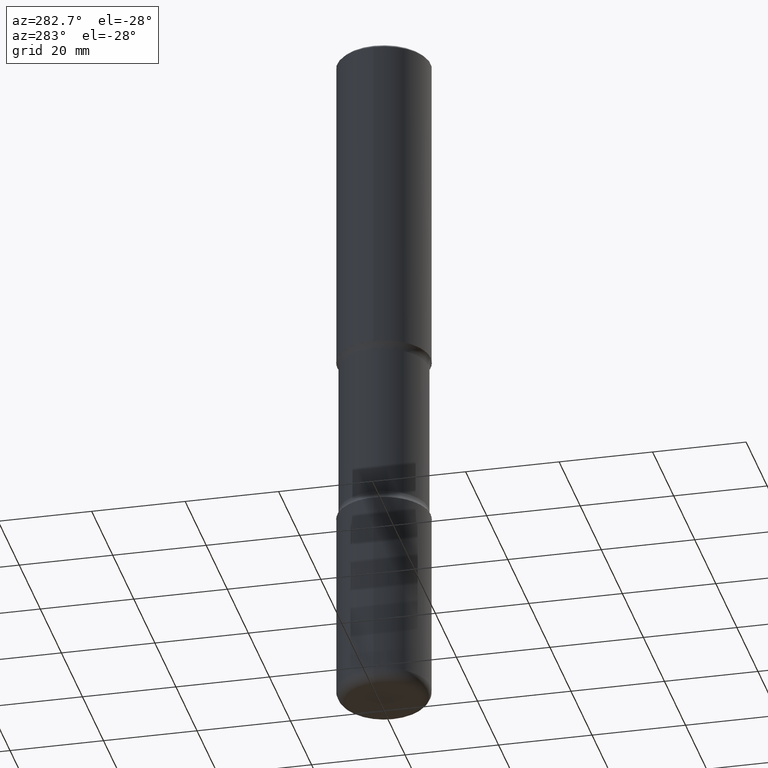
[diagram: clean part render]
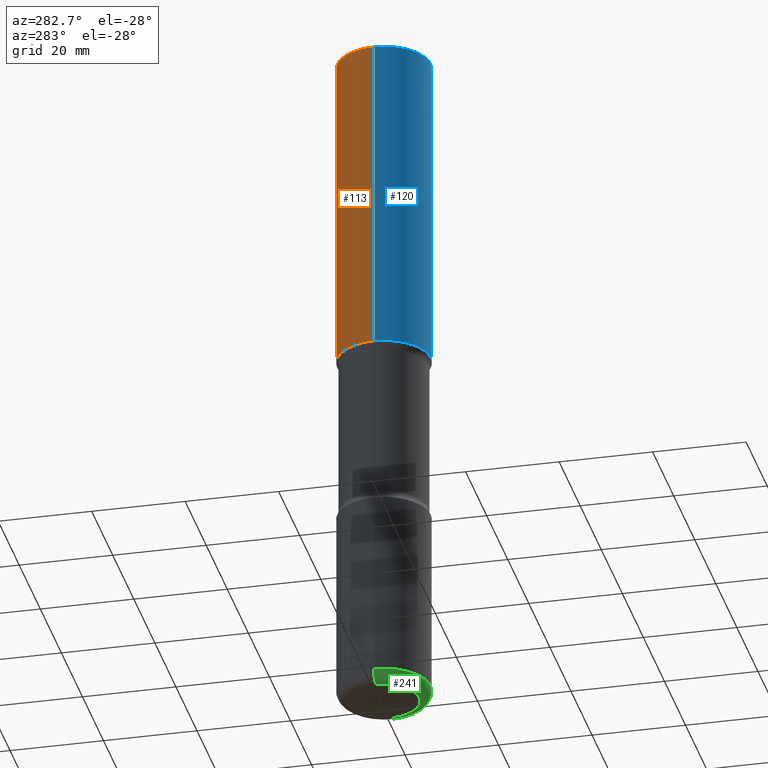
[diagram: same view with three faces highlighted in distinct colors, each labeled with its STEP entity id]
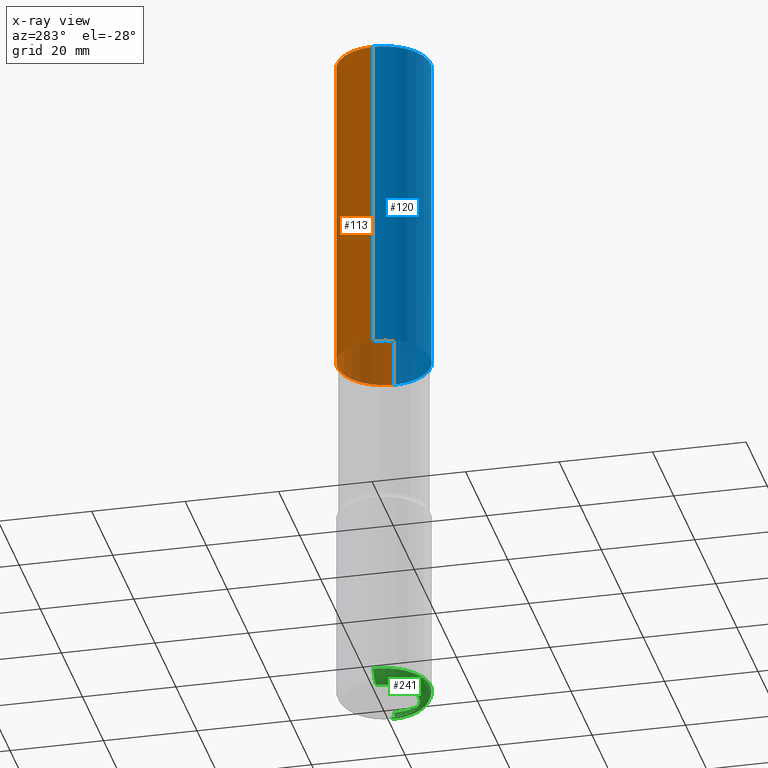
[diagram: x-ray of the same camera — body ghosted, the three highlighted faces saturated]
A machine part, auxiliary view with three faces highlighted in distinct colors.
The next image is the same camera in x-ray (body ghosted, the three faces saturated) — at least one of them is partly hidden behind the body in this view.
Their STEP definitions:

[orange] entity #113 — the highlighted cylindrical surface (partial cylindrical patch) has radius 10 mm, axis along (-0, 0, 1).
#5 = CARTESIAN_POINT ( 'NONE',  ( 0.000000000000000000, 0.000000000000000000, 0.000000000000000000 ) ) ;
#11 = FACE_OUTER_BOUND ( 'NONE', #239, .T. ) ;
#30 = EDGE_CURVE ( 'NONE', #47, #74, #317, .T. ) ;
#38 = DIRECTION ( 'NONE',  ( 1.000000000000000000, -6.982962677686266711E-15, 4.876176775795935793E-29 ) ) ;
#47 = VERTEX_POINT ( 'NONE', #451 ) ;
#61 = DIRECTION ( 'NONE',  ( 1.000000000000000000, -6.982962677686265133E-15, 0.000000000000000000 ) ) ;
#74 = VERTEX_POINT ( 'NONE', #535 ) ;
#80 = DIRECTION ( 'NONE',  ( -2.445468806185136597E-29, 3.491481338843145583E-15, 1.000000000000000000 ) ) ;
#83 = CARTESIAN_POINT ( 'NONE',  ( 4.890937612370298557E-31, -6.982962677686327354E-17, -0.02000000000000010103 ) ) ;
#95 = CARTESIAN_POINT ( 'NONE',  ( -0.3936999999999999389, 2.679362779428219524E-15, -0.02000000000000010103 ) ) ;
#113 = ADVANCED_FACE ( 'NONE', ( #11 ), #436, .T. ) ;
#114 = CARTESIAN_POINT ( 'NONE',  ( 0.3936999999999999389, -2.770807688499514945E-15, -0.02000000000000010103 ) ) ;
#129 = ORIENTED_EDGE ( 'NONE', *, *, #432, .F. ) ;
#191 = EDGE_CURVE ( 'NONE', #74, #280, #463, .T. ) ;
#192 = DIRECTION ( 'NONE',  ( -2.445468806185136877E-29, 3.491481338843145188E-15, 1.000000000000000000 ) ) ;
#223 = VECTOR ( 'NONE', #336, 39.37007874015748143 ) ;
#239 = EDGE_LOOP ( 'NONE', ( #475, #424, #129, #559 ) ) ;
#245 = CIRCLE ( 'NONE', #311, 0.3936999999999999389 ) ;
#264 = DIRECTION ( 'NONE',  ( -2.445468806185136597E-29, 3.491481338843145583E-15, 1.000000000000000000 ) ) ;
#280 = VERTEX_POINT ( 'NONE', #95 ) ;
#304 = EDGE_CURVE ( 'NONE', #47, #487, #341, .T. ) ;
#311 = AXIS2_PLACEMENT_3D ( 'NONE', #83, #329, #460 ) ;
#313 = CARTESIAN_POINT ( 'NONE',  ( 6.739467482965614869E-29, -9.622173421717819657E-15, -2.755899999999998240 ) ) ;
#317 = CIRCLE ( 'NONE', #447, 0.3937000000000002164 ) ;
#325 = CARTESIAN_POINT ( 'NONE',  ( 0.3937000000000001054, -2.749192406205084005E-15, 1.919750796630860452E-29 ) ) ;
#329 = DIRECTION ( 'NONE',  ( -2.445468806185136597E-29, 3.491481338843145583E-15, 1.000000000000000000 ) ) ;
#336 = DIRECTION ( 'NONE',  ( -2.445468806185136877E-29, 3.491481338843145188E-15, 1.000000000000000000 ) ) ;
#341 = LINE ( 'NONE', #325, #223 ) ;
#424 = ORIENTED_EDGE ( 'NONE', *, *, #191, .T. ) ;
#432 = EDGE_CURVE ( 'NONE', #487, #280, #245, .T. ) ;
#436 = CYLINDRICAL_SURFACE ( 'NONE', #466, 0.3937000000000001054 ) ;
#447 = AXIS2_PLACEMENT_3D ( 'NONE', #313, #264, #61 ) ;
#451 = CARTESIAN_POINT ( 'NONE',  ( 0.3937000000000002164, -1.237136582792290287E-14, -2.755899999999998240 ) ) ;
#460 = DIRECTION ( 'NONE',  ( 1.000000000000000000, -6.982962677686266711E-15, 0.000000000000000000 ) ) ;
#463 = LINE ( 'NONE', #472, #509 ) ;
#466 = AXIS2_PLACEMENT_3D ( 'NONE', #5, #80, #38 ) ;
#472 = CARTESIAN_POINT ( 'NONE',  ( -0.3937000000000001054, 2.797406750687515181E-15, -1.936584745033357016E-29 ) ) ;
#475 = ORIENTED_EDGE ( 'NONE', *, *, #30, .T. ) ;
#487 = VERTEX_POINT ( 'NONE', #114 ) ;
#509 = VECTOR ( 'NONE', #192, 39.37007874015748143 ) ;
#535 = CARTESIAN_POINT ( 'NONE',  ( -0.3937000000000002720, -2.048594773559823141E-15, -2.755899999999998240 ) ) ;
#559 = ORIENTED_EDGE ( 'NONE', *, *, #304, .F. ) ;

[blue] entity #120 — the highlighted cylindrical surface (partial cylindrical patch) has radius 10 mm, axis along (-0, 0, 1).
#2 = AXIS2_PLACEMENT_3D ( 'NONE', #109, #273, #453 ) ;
#47 = VERTEX_POINT ( 'NONE', #451 ) ;
#60 = CYLINDRICAL_SURFACE ( 'NONE', #90, 0.3937000000000001054 ) ;
#62 = DIRECTION ( 'NONE',  ( -2.445468806185136597E-29, 3.491481338843145583E-15, 1.000000000000000000 ) ) ;
#66 = EDGE_CURVE ( 'NONE', #280, #487, #275, .T. ) ;
#70 = CIRCLE ( 'NONE', #2, 0.3937000000000002164 ) ;
#74 = VERTEX_POINT ( 'NONE', #535 ) ;
#88 = EDGE_CURVE ( 'NONE', #74, #47, #70, .T. ) ;
#90 = AXIS2_PLACEMENT_3D ( 'NONE', #444, #62, #147 ) ;
#95 = CARTESIAN_POINT ( 'NONE',  ( -0.3936999999999999389, 2.679362779428219524E-15, -0.02000000000000010103 ) ) ;
#109 = CARTESIAN_POINT ( 'NONE',  ( 6.739467482965614869E-29, -9.622173421717819657E-15, -2.755899999999998240 ) ) ;
#114 = CARTESIAN_POINT ( 'NONE',  ( 0.3936999999999999389, -2.770807688499514945E-15, -0.02000000000000010103 ) ) ;
#120 = ADVANCED_FACE ( 'NONE', ( #238 ), #60, .T. ) ;
#147 = DIRECTION ( 'NONE',  ( 1.000000000000000000, -6.982962677686266711E-15, 4.876176775795935793E-29 ) ) ;
#155 = ORIENTED_EDGE ( 'NONE', *, *, #88, .T. ) ;
#191 = EDGE_CURVE ( 'NONE', #74, #280, #463, .T. ) ;
#192 = DIRECTION ( 'NONE',  ( -2.445468806185136877E-29, 3.491481338843145188E-15, 1.000000000000000000 ) ) ;
#197 = ORIENTED_EDGE ( 'NONE', *, *, #304, .T. ) ;
#223 = VECTOR ( 'NONE', #336, 39.37007874015748143 ) ;
#238 = FACE_OUTER_BOUND ( 'NONE', #323, .T. ) ;
#273 = DIRECTION ( 'NONE',  ( -2.445468806185136597E-29, 3.491481338843145583E-15, 1.000000000000000000 ) ) ;
#275 = CIRCLE ( 'NONE', #542, 0.3936999999999999389 ) ;
#280 = VERTEX_POINT ( 'NONE', #95 ) ;
#304 = EDGE_CURVE ( 'NONE', #47, #487, #341, .T. ) ;
#318 = CARTESIAN_POINT ( 'NONE',  ( 4.890937612370298557E-31, -6.982962677686327354E-17, -0.02000000000000010103 ) ) ;
#322 = DIRECTION ( 'NONE',  ( 1.000000000000000000, -6.982962677686266711E-15, 0.000000000000000000 ) ) ;
#323 = EDGE_LOOP ( 'NONE', ( #356, #155, #197, #367 ) ) ;
#325 = CARTESIAN_POINT ( 'NONE',  ( 0.3937000000000001054, -2.749192406205084005E-15, 1.919750796630860452E-29 ) ) ;
#336 = DIRECTION ( 'NONE',  ( -2.445468806185136877E-29, 3.491481338843145188E-15, 1.000000000000000000 ) ) ;
#341 = LINE ( 'NONE', #325, #223 ) ;
#356 = ORIENTED_EDGE ( 'NONE', *, *, #191, .F. ) ;
#367 = ORIENTED_EDGE ( 'NONE', *, *, #66, .F. ) ;
#444 = CARTESIAN_POINT ( 'NONE',  ( 0.000000000000000000, 0.000000000000000000, 0.000000000000000000 ) ) ;
#451 = CARTESIAN_POINT ( 'NONE',  ( 0.3937000000000002164, -1.237136582792290287E-14, -2.755899999999998240 ) ) ;
#453 = DIRECTION ( 'NONE',  ( 1.000000000000000000, -6.982962677686265133E-15, 0.000000000000000000 ) ) ;
#463 = LINE ( 'NONE', #472, #509 ) ;
#472 = CARTESIAN_POINT ( 'NONE',  ( -0.3937000000000001054, 2.797406750687515181E-15, -1.936584745033357016E-29 ) ) ;
#487 = VERTEX_POINT ( 'NONE', #114 ) ;
#493 = DIRECTION ( 'NONE',  ( -2.445468806185136597E-29, 3.491481338843145583E-15, 1.000000000000000000 ) ) ;
#509 = VECTOR ( 'NONE', #192, 39.37007874015748143 ) ;
#535 = CARTESIAN_POINT ( 'NONE',  ( -0.3937000000000002720, -2.048594773559823141E-15, -2.755899999999998240 ) ) ;
#542 = AXIS2_PLACEMENT_3D ( 'NONE', #318, #493, #322 ) ;

[green] entity #241 — the highlighted toroidal blend (fillet) surface has major radius 7.5006 mm and minor (blend) radius 2.4994 mm.
#10 = DIRECTION ( 'NONE',  ( -2.445468806185136597E-29, 3.491481338843145583E-15, 1.000000000000000000 ) ) ;
#12 = CARTESIAN_POINT ( 'NONE',  ( -0.3937000000000008271, -1.747797453210850398E-14, -5.807099999999998374 ) ) ;
#48 = ORIENTED_EDGE ( 'NONE', *, *, #536, .F. ) ;
#76 = CARTESIAN_POINT ( 'NONE',  ( 0.3937000000000008271, -2.302457368900111381E-14, -5.807099999999998374 ) ) ;
#84 = CARTESIAN_POINT ( 'NONE',  ( 0.2953000000000005620, -2.268101192525895245E-14, -5.905499999999999972 ) ) ;
#93 = EDGE_LOOP ( 'NONE', ( #396, #258, #349, #48 ) ) ;
#143 = DIRECTION ( 'NONE',  ( -6.982962677686266711E-15, -1.000000000000000000, 3.491481338843145583E-15 ) ) ;
#164 = EDGE_CURVE ( 'NONE', #518, #227, #288, .T. ) ;
#196 = CARTESIAN_POINT ( 'NONE',  ( 1.444171603492632270E-28, -2.061894304653819197E-14, -5.905499999999999972 ) ) ;
#201 = AXIS2_PLACEMENT_3D ( 'NONE', #468, #282, #464 ) ;
#227 = VERTEX_POINT ( 'NONE', #84 ) ;
#234 = VERTEX_POINT ( 'NONE', #12 ) ;
#236 = DIRECTION ( 'NONE',  ( -1.000000000000000000, 7.105427357600994759E-15, 0.000000000000000000 ) ) ;
#241 = ADVANCED_FACE ( 'NONE', ( #445 ), #353, .T. ) ;
#258 = ORIENTED_EDGE ( 'NONE', *, *, #164, .T. ) ;
#282 = DIRECTION ( 'NONE',  ( -2.445468806185136597E-29, 3.491481338843145583E-15, 1.000000000000000000 ) ) ;
#286 = CARTESIAN_POINT ( 'NONE',  ( -0.2953000000000005620, -1.799934243997356436E-14, -5.905499999999999972 ) ) ;
#288 = CIRCLE ( 'NONE', #448, 0.2953000000000005620 ) ;
#342 = CARTESIAN_POINT ( 'NONE',  ( -0.2953000000000005620, -1.817714858409644444E-14, -5.807099999999998374 ) ) ;
#345 = CIRCLE ( 'NONE', #201, 0.3937000000000004940 ) ;
#346 = DIRECTION ( 'NONE',  ( 1.000000000000000000, -6.982962677686270655E-15, 0.000000000000000000 ) ) ;
#349 = ORIENTED_EDGE ( 'NONE', *, *, #362, .T. ) ;
#353 = TOROIDAL_SURFACE ( 'NONE', #414, 0.2953000000000005620, 0.09840000000000062585 ) ;
#355 = DIRECTION ( 'NONE',  ( 1.000000000000000000, -6.982962677686267499E-15, 4.883557194083112901E-29 ) ) ;
#360 = DIRECTION ( 'NONE',  ( 1.000000000000000000, -6.982962677686257244E-15, 0.000000000000000000 ) ) ;
#362 = EDGE_CURVE ( 'NONE', #227, #429, #533, .T. ) ;
#366 = DIRECTION ( 'NONE',  ( 7.105427357601001859E-15, 1.000000000000000000, -3.491481338843145583E-15 ) ) ;
#376 = DIRECTION ( 'NONE',  ( -2.445468806185136597E-29, 3.491481338843145583E-15, 1.000000000000000000 ) ) ;
#396 = ORIENTED_EDGE ( 'NONE', *, *, #527, .F. ) ;
#397 = CARTESIAN_POINT ( 'NONE',  ( 0.2953000000000005620, -2.233745016151678477E-14, -5.807099999999998374 ) ) ;
#414 = AXIS2_PLACEMENT_3D ( 'NONE', #443, #10, #355 ) ;
#416 = AXIS2_PLACEMENT_3D ( 'NONE', #342, #366, #236 ) ;
#428 = CIRCLE ( 'NONE', #416, 0.09840000000000061198 ) ;
#429 = VERTEX_POINT ( 'NONE', #76 ) ;
#443 = CARTESIAN_POINT ( 'NONE',  ( 1.420108190439770332E-28, -2.027538128279602429E-14, -5.807099999999998374 ) ) ;
#445 = FACE_OUTER_BOUND ( 'NONE', #93, .T. ) ;
#448 = AXIS2_PLACEMENT_3D ( 'NONE', #196, #376, #346 ) ;
#464 = DIRECTION ( 'NONE',  ( 1.000000000000000000, -6.982962677686269866E-15, 0.000000000000000000 ) ) ;
#468 = CARTESIAN_POINT ( 'NONE',  ( 1.420108190439770332E-28, -2.027538128279602429E-14, -5.807099999999998374 ) ) ;
#518 = VERTEX_POINT ( 'NONE', #286 ) ;
#527 = EDGE_CURVE ( 'NONE', #518, #234, #428, .T. ) ;
#533 = CIRCLE ( 'NONE', #543, 0.09840000000000061198 ) ;
#536 = EDGE_CURVE ( 'NONE', #234, #429, #345, .T. ) ;
#543 = AXIS2_PLACEMENT_3D ( 'NONE', #397, #143, #360 ) ;